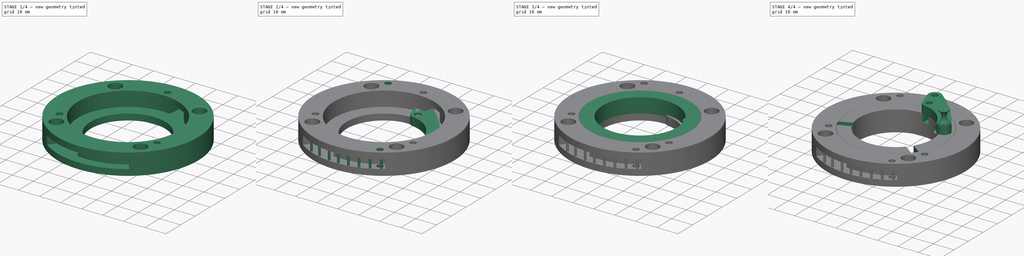
[diagram: build sequence overview — one tinted view per stage of 4, left to right]
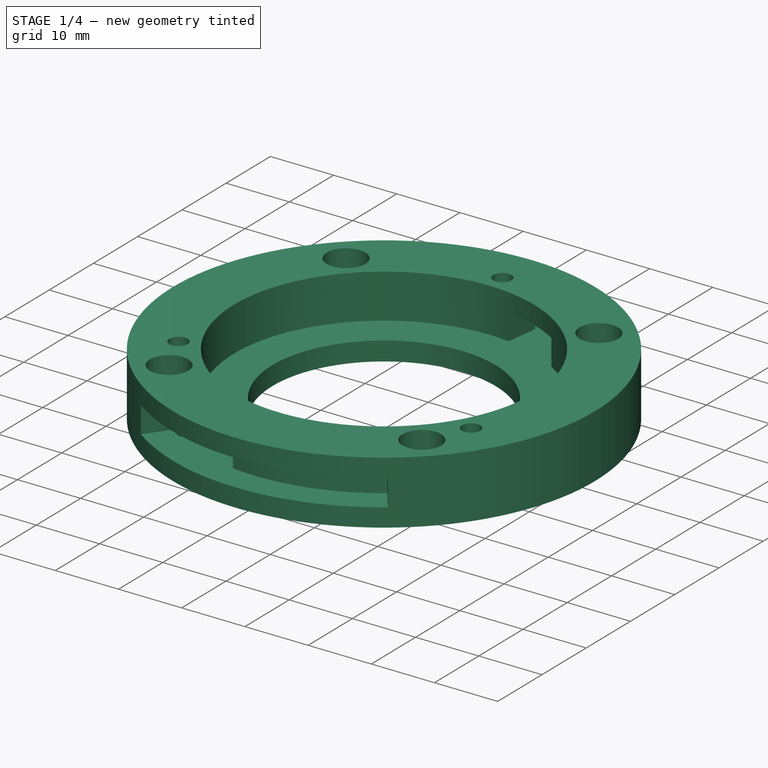
[diagram: stage 1 of 4 — iso view after this stage's code; geometry added in this stage tinted green]
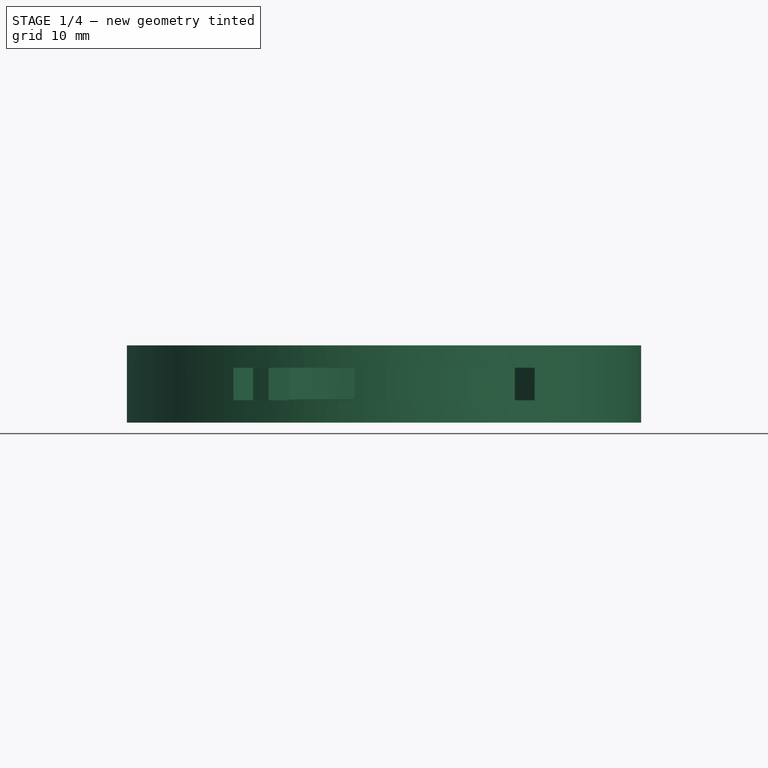
[diagram: stage 1 of 4 — front view after this stage's code; geometry added in this stage tinted green]
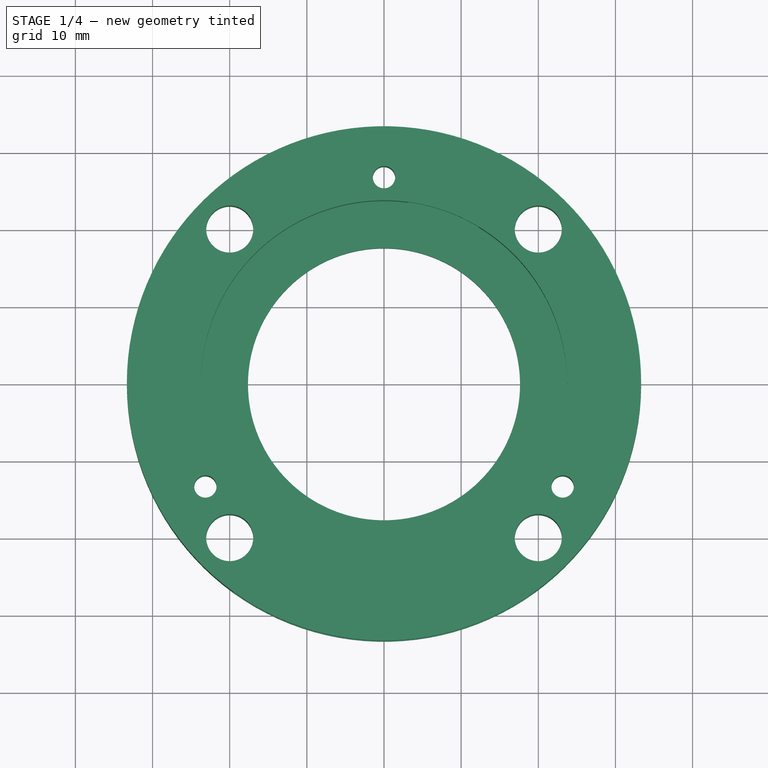
[diagram: stage 1 of 4 — top view after this stage's code; geometry added in this stage tinted green]
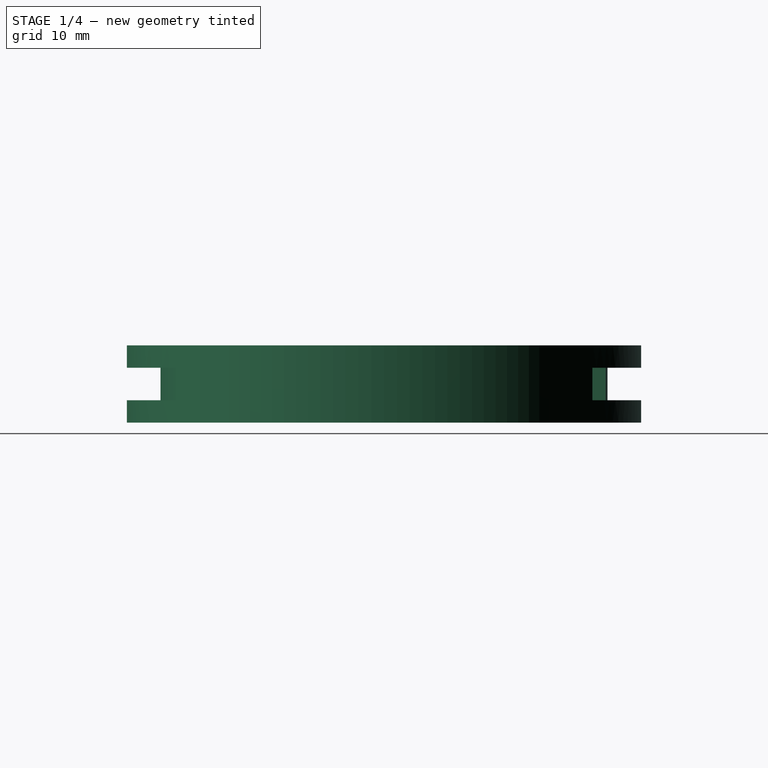
[diagram: stage 1 of 4 — right view after this stage's code; geometry added in this stage tinted green]
FCSTD DOCUMENT  (FreeCAD 0.20R29410 (Git))
Label: CCLensMount
License: All rights reserved
LicenseURL: http://en.wikipedia.org/wiki/All_rights_reserved
objects: Sketcher::SketchObject×13, PartDesign::Pocket×6, Part::Part2DObjectPython×5, PartDesign::Plane×5, PartDesign::Body×5, PartDesign::Pad×3, PartDesign::Revolution×2, PartDesign::FeatureBase×2, Spreadsheet::Sheet×1, Image::ImagePlane×1, PartDesign::SubtractiveTorus×1
note: 54 computed .brp shape members not serialized (recipe doc carries the construction recipe); baked Part::Feature solids carry a one-line shape summary decoded from their .brp

FEATURE [Part::Part2DObjectPython] Clone2D001  label="MechanismGeomSketch (2D)"  # Draft 2D object (typed FeaturePython)
  Fuse = false
  Objects = -> [Sketch]
  Scale = (1,1,1)
FEATURE [Part::Part2DObjectPython] Clone2D002  label="CoreDimensionsSketch (2D)"  # Draft 2D object (typed FeaturePython)
  Fuse = false
  Objects = -> [Sketch002]
  Scale = (1,1,1)
FEATURE [Sketcher::SketchObject] Sketch003
  ExternalGeometry = -> [Clone2D002]
  FullyConstrained = true
  MapMode = 5
  Placement = pos=(0,0,0) rot=(1,0,0;1.5708rad)
  Support = -> [XZ_Plane001]
  sketch-geometry (6):
    g0: LineSegment StartX=-33.3343 StartY=0 StartZ=0 EndX=-33.3343 EndY=10 EndZ=0
    g1: LineSegment StartX=-33.3343 StartY=10 StartZ=0 EndX=-23.7343 EndY=10 EndZ=0
    g2: LineSegment StartX=-23.7343 StartY=10 StartZ=0 EndX=-23.7343 EndY=3 EndZ=0
    g3: LineSegment StartX=-23.7343 StartY=3 StartZ=0 EndX=-17.6343 EndY=3 EndZ=0
    g4: LineSegment StartX=-17.6343 StartY=3 StartZ=0 EndX=-17.6343 EndY=0 EndZ=0
    g5: LineSegment StartX=-33.3343 StartY=0 StartZ=0 EndX=-17.6343 EndY=0 EndZ=0
  constraints (16):
    c: Coincident(g-3,g0)
    c: Vertical(g0)
    c: Coincident(g0,g1)
    c: Horizontal(g1)
    c: Coincident(g1,g2)
    c: Vertical(g2)
    c: Coincident(g2,g3)
    c: Horizontal(g3)
    c: Coincident(g3,g4)
    c: Coincident(g4,g-5)
    c: Vertical(g4)
    c: Coincident(g5,g0)
    c: Coincident(g5,g4)
    c: DistanceY(g0,g0) = 10
    c: Vertical(g2,g-4)
    c: DistanceY(g4,g4) = 3
FEATURE [PartDesign::Revolution] Revolution
  Angle = 360
  Axis = (0,-2e-16,1)
  Base = (0,0,0)
  Placement = pos=(0,0,0) rot=(1,0,0;1.5708rad)
  Profile = -> Sketch003
  ReferenceAxis = -> Sketch003 [V_Axis]
  Refine = true
FEATURE [Part::Part2DObjectPython] Clone2D004  label="MechanismGeomSketch (2D)001"  # Draft 2D object (typed FeaturePython)
  Fuse = false
  Objects = -> [Sketch]
  Scale = (1,1,1)
FEATURE [PartDesign::Plane] DatumPlane
  AttachmentOffset = pos=(0,0,10) rot=(0,0,1;0rad)
  Length = 60
  MapMode = 5
  Placement = pos=(0,0,10) rot=(0,0,1;0rad)
  ResizeMode = 0
  Support = -> [XY_Plane001]
  Width = 60
  expr: .AttachmentOffset.Base.z = Spreadsheet.ringheight
FEATURE [Sketcher::SketchObject] Sketch005
  ExternalGeometry = -> [Clone2D001,Clone2D002]
  FullyConstrained = true
  MapMode = 5
  Placement = pos=(0,0,10) rot=(0,0,1;0rad)
  Support = -> [DatumPlane]
  expr: Constraints[13] = Spreadsheet.roddiameter + Spreadsheet.rodclearance
  expr: Constraints[5] = Spreadsheet.m3tightholediameter
  sketch-geometry (9):
    g0: Circle CenterX=0 CenterY=0 CenterZ=0 NormalX=0 NormalY=0 NormalZ=1 AngleXU=0 Radius=1.45
    g1: Circle CenterX=0 CenterY=26.7343 CenterZ=0 NormalX=0 NormalY=0 NormalZ=1 AngleXU=0 Radius=1.45
    g2: Circle CenterX=0 CenterY=-1.8e-15 CenterZ=0 NormalX=0 NormalY=0 NormalZ=1 AngleXU=0 Radius=1.45
    g3: Circle CenterX=-20 CenterY=20 CenterZ=0 NormalX=0 NormalY=0 NormalZ=1 AngleXU=0 Radius=3.05
    g4: Circle CenterX=20 CenterY=20 CenterZ=0 NormalX=0 NormalY=0 NormalZ=1 AngleXU=0 Radius=3.05
    g5: Circle CenterX=-20 CenterY=-20 CenterZ=0 NormalX=0 NormalY=0 NormalZ=1 AngleXU=0 Radius=3.05
    g6: Circle CenterX=20 CenterY=-20 CenterZ=0 NormalX=0 NormalY=0 NormalZ=1 AngleXU=0 Radius=3.05
    g7: Circle CenterX=-23.1526 CenterY=-13.3671 CenterZ=0 NormalX=0 NormalY=0 NormalZ=1 AngleXU=0 Radius=1.45
    g8: Circle CenterX=23.1526 CenterY=-13.3671 CenterZ=0 NormalX=0 NormalY=0 NormalZ=1 AngleXU=0 Radius=1.45
  constraints (18):
    c: Coincident(g0,g-3)
    c: Coincident(g1,g-4)
    c: Coincident(g2,g-5)
    c: Equal(g0,g2)
    c: Equal(g2,g1)
    c: Diameter(g0) = 2.9
    c: Coincident(g3,g-6)
    c: Coincident(g4,g-7)
    c: Coincident(g5,g-8)
    c: Coincident(g6,g-9)
    c: Equal(g3,g4)
    c: Equal(g4,g5)
    c: Equal(g5,g6)
    c: Diameter(g3) = 6.1
    c: Coincident(g7,g-11)
    c: Coincident(g8,g-10)
    c: Equal(g7,g8)
    c: Equal(g8,g1)
FEATURE [PartDesign::Pocket] Pocket
  BaseFeature = -> Revolution
  Direction = (0,0,-1)
  Length = 12
  Length2 = 5
  Placement = pos=(0,0,0) rot=(1,0,0;1.5708rad)
  Profile = -> Sketch005
  ReferenceAxis = -> Sketch005 [N_Axis]
  Refine = true
  Type = 0
FEATURE [PartDesign::Plane] DatumPlane003
  AttachmentOffset = pos=(0,0,5) rot=(0,0,1;0rad)
  Length = 60
  MapMode = 5
  Placement = pos=(0,0,5) rot=(0,0,1;0rad)
  ResizeMode = 0
  Support = -> [XY_Plane001]
  Width = 60
  expr: .AttachmentOffset.Base.z = Spreadsheet.ringheight / 2
FEATURE [Sketcher::SketchObject] Sketch008
  ExternalGeometry = -> [Clone2D001,Clone2D002]
  FullyConstrained = false
  MapMode = 5
  Placement = pos=(0,0,5) rot=(0,0,1;0rad)
  Support = -> [DatumPlane003]
  sketch-geometry (10):
    g0: LineSegment StartX=4.85086 StartY=36.5697 StartZ=0 EndX=3.12094 EndY=23.5282 EndZ=0
    g1: LineSegment StartX=3.12094 StartY=23.5282 StartZ=0 EndX=12.2695 EndY=20.3169 EndZ=0
    g2: LineSegment StartX=12.2695 StartY=20.3169 StartZ=0 EndX=18.54 EndY=30.7003 EndZ=0
    g3: LineSegment StartX=18.54 StartY=30.7003 StartZ=0 EndX=4.85086 EndY=36.5697 EndZ=0
    g4: LineSegment StartX=-5.73963 StartY=-43.2699 StartZ=0 EndX=5.98973 EndY=45.1554 EndZ=0
    g5: LineSegment StartX=-23.129 StartY=-38.2991 StartZ=0 EndX=20.139 EndY=33.3479 EndZ=0
    g6: LineSegment StartX=-12.2695 StartY=-20.3169 StartZ=0 EndX=-3.12094 EndY=-23.5282 EndZ=0
    g7: LineSegment StartX=-3.12094 StartY=-23.5282 StartZ=0 EndX=-4.67523 EndY=-35.2456 EndZ=0
    g8: LineSegment StartX=-4.67523 StartY=-35.2456 StartZ=0 EndX=-18.2755 EndY=-30.2621 EndZ=0
    g9: LineSegment StartX=-18.2755 StartY=-30.2621 StartZ=0 EndX=-12.2695 EndY=-20.3169 EndZ=0
  constraints (24):
    c: Coincident(g0,g1)
    c: Coincident(g1,g2)
    c: Coincident(g2,g3)
    c: Coincident(g3,g0)
    c: PointOnObject(g0,g4)
    c: PointOnObject(g0,g4)
    c: PointOnObject(g1,g5)
    c: PointOnObject(g2,g5)
    c: Angle(g-1,g5) = 1.02751
    c: Angle(g5,g4) = 0.411409
    c: PointOnObject(g-3,g5)
    c: PointOnObject(g-3,g4)
    c: PointOnObject(g6,g5)
    c: PointOnObject(g6,g4)
    c: Coincident(g6,g7)
    c: PointOnObject(g7,g4)
    c: Coincident(g7,g8)
    c: PointOnObject(g8,g5)
    c: Coincident(g8,g9)
    c: Coincident(g9,g6)
    c: PointOnObject(g0,g-4)
    c: PointOnObject(g1,g-4)
    c: PointOnObject(g6,g-4)
    c: PointOnObject(g6,g-4)
FEATURE [PartDesign::Pocket] Pocket002  label="LeverPocket"
  BaseFeature = -> Pocket
  Direction = (0,0,-1)
  Length = 4.2
  Length2 = 5
  Midplane = true
  Placement = pos=(0,0,0) rot=(1,0,0;1.5708rad)
  Profile = -> Sketch008
  ReferenceAxis = -> Sketch008 [N_Axis]
  Refine = true
  Type = 0
FEATURE [PartDesign::Body] Body002  label="InnerRingBody"
  Group = -> [Sketch004,Clone2D003,Revolution001,DatumPlane002,Clone2D004,Sketch007,Pocket001,DatumPlane004,Sketch009,Pocket003]
  Origin = -> Origin002
  Tip = -> Pocket003
FEATURE [Sketcher::SketchObject] Sketch010
  FullyConstrained = false
  MapMode = 5
  Placement = pos=(0,0,5) rot=(0,0,1;0rad)
  Support = -> [DatumPlane003]
  sketch-geometry (11):
    g0: ArcOfCircle CenterX=0 CenterY=0 CenterZ=0 NormalX=0 NormalY=0 NormalZ=1 AngleXU=0 Radius=33.965 StartAngle=0.944875 EndAngle=2.19672
    g1: ArcOfCircle CenterX=0 CenterY=0 CenterZ=0 NormalX=0 NormalY=0 NormalZ=1 AngleXU=0 Radius=28.965 StartAngle=0.944875 EndAngle=2.19672
    g2: LineSegment StartX=0 StartY=0 StartZ=0 EndX=-20.0857 EndY=27.7855 EndZ=0
    g3: LineSegment StartX=0 StartY=0 StartZ=0 EndX=24.3287 EndY=33.655 EndZ=0
    g4: LineSegment StartX=-19.8982 StartY=27.526 StartZ=0 EndX=-16.969 EndY=23.4739 EndZ=0
    g5: LineSegment StartX=19.8982 StartY=27.526 StartZ=0 EndX=16.969 EndY=23.4739 EndZ=0
    g6: LineSegment StartX=4.35426 StartY=36.7028 StartZ=0 EndX=-19.6019 EndY=31.7566 EndZ=0
    g7: ArcOfCircle CenterX=0 CenterY=0 CenterZ=0 NormalX=0 NormalY=0 NormalZ=1 AngleXU=0 Radius=28.965 StartAngle=4.08647 EndAngle=5.33831
    g8: ArcOfCircle CenterX=0 CenterY=0 CenterZ=0 NormalX=0 NormalY=0 NormalZ=1 AngleXU=0 Radius=33.965 StartAngle=4.08647 EndAngle=5.33831
    g9: LineSegment StartX=-16.969 StartY=-23.4739 StartZ=0 EndX=-19.8982 EndY=-27.526 EndZ=0
    g10: LineSegment StartX=16.969 StartY=-23.4739 StartZ=0 EndX=19.8982 EndY=-27.526 EndZ=0
  constraints (28):
    c: Coincident(g-1,g0)
    c: Coincident(g1,g0)
    c: Coincident(g2,g0)
    c: PointOnObject(g0,g2)
    c: PointOnObject(g1,g2)
    c: Coincident(g3,g0)
    c: PointOnObject(g0,g3)
    c: PointOnObject(g1,g3)
    c: Distance(g0,g1) = 5
    c: Coincident(g4,g0)
    c: Coincident(g4,g1)
    c: Coincident(g5,g0)
    c: Coincident(g5,g1)
    c: Coincident(g7,g0)
    c: Coincident(g8,g0)
    c: Coincident(g9,g7)
    c: Coincident(g9,g8)
    c: Coincident(g10,g7)
    c: Coincident(g10,g8)
    c: Block(g2)
    c: Distance(g1,g0) = 28.965
    c: Parallel(g4,g10)
    c: Block(g3)
    c: PointOnObject(g7,g3)
    c: PointOnObject(g8,g3)
    c: PointOnObject(g7,g2)
    c: Equal(g4,g9)
    c: Symmetric(g1,g7,g-1)
FEATURE [PartDesign::Pocket] Pocket004  label="SpringPocket"
  BaseFeature = -> Pocket002
  Direction = (0,0,-1)
  Length = 4.2
  Length2 = 5
  Midplane = true
  Placement = pos=(0,0,0) rot=(1,0,0;1.5708rad)
  Profile = -> Sketch010
  ReferenceAxis = -> Sketch010 [N_Axis]
  Refine = true
  Type = 0
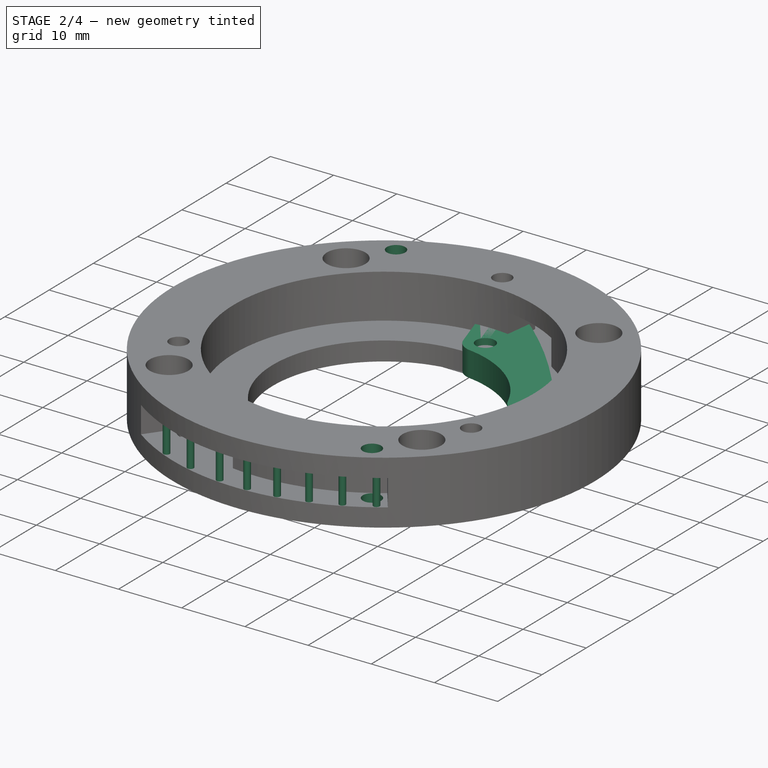
[diagram: stage 2 of 4 — iso view after this stage's code; geometry added in this stage tinted green]
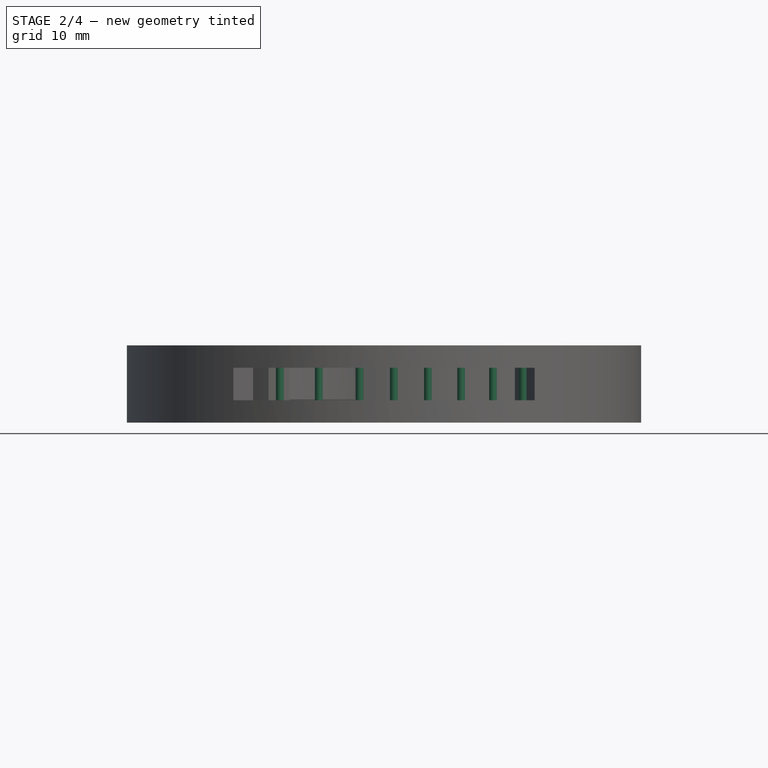
[diagram: stage 2 of 4 — front view after this stage's code; geometry added in this stage tinted green]
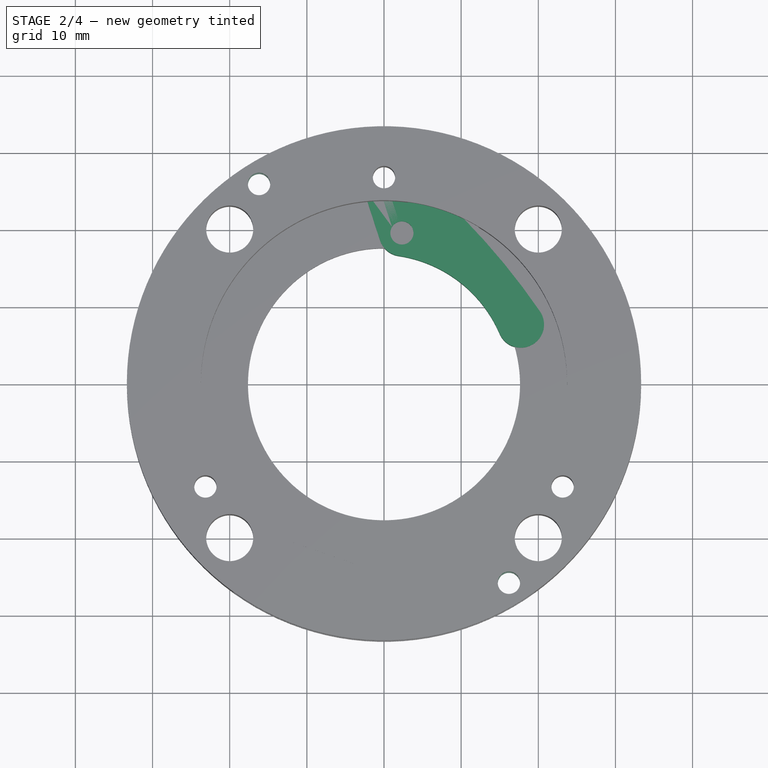
[diagram: stage 2 of 4 — top view after this stage's code; geometry added in this stage tinted green]
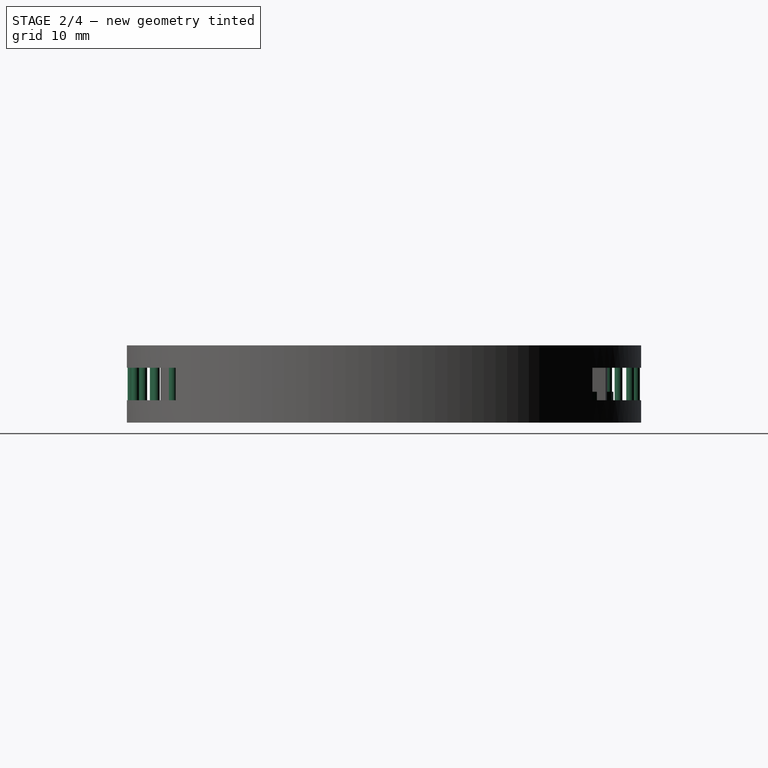
[diagram: stage 2 of 4 — right view after this stage's code; geometry added in this stage tinted green]
FEATURE [Spreadsheet::Sheet] Spreadsheet
  cells = A2=outerdiameter; B2(outerdiameter)==62mm; A3=innerringwidth; B3(innerringwidth)==6mm; A4=innerdiameter; B4(innerdiameter)==34mm; A5=ringclearance; B5(ringclearance)==0.1mm; A6=outerringwidth; B6(outerringwidth)==4mm; A7=outerrignlipheight; B7(outerrignlipheight)==3mm; A8=ringheight; B8(ringheight)==10mm; A9=m3tightholediameter; B9(m3tightholediameter)==2.9mm; A10=rodclearance; B10(rodclearance)==0.1mm; A11=cagedim; B11(cagedim)==40mm; A12=roddiameter; B12(roddiameter)==6mm; A13=armheight; B13(armheight)==4mm
FEATURE [Image::ImagePlane] ImagePlane
  Placement = pos=(-32.4,-5.4,0) rot=(0,0,1;0rad)
  XSize = 142.86
  YSize = 142.86
FEATURE [Sketcher::SketchObject] Sketch002  label="CoreDimensionsSketch"
  FullyConstrained = false
  expr: Constraints[11] = Spreadsheet.cagedim
  expr: Constraints[19] = Spreadsheet.roddiameter + Spreadsheet.rodclearance
  expr: Constraints[56] = Spreadsheet.ringclearance
  expr: Constraints[61] = Spreadsheet.innerringwidth
  sketch-geometry (29):
    g0: LineSegment StartX=-20 StartY=20 StartZ=0 EndX=-20 EndY=-20 EndZ=0
    g1: LineSegment StartX=-20 StartY=-20 StartZ=0 EndX=20 EndY=-20 EndZ=0
    g2: LineSegment StartX=20 StartY=-20 StartZ=0 EndX=20 EndY=20 EndZ=0
    g3: LineSegment StartX=20 StartY=20 StartZ=0 EndX=-20 EndY=20 EndZ=0
    g4: GeomPoint X=0 Y=0 Z=0
    g5: Circle CenterX=-20 CenterY=20 CenterZ=0 NormalX=0 NormalY=0 NormalZ=1 AngleXU=0 Radius=3.05
    g6: Circle CenterX=20 CenterY=20 CenterZ=0 NormalX=0 NormalY=0 NormalZ=1 AngleXU=0 Radius=3.05
    g7: Circle CenterX=-20 CenterY=-20 CenterZ=0 NormalX=0 NormalY=0 NormalZ=1 AngleXU=0 Radius=3.05
    g8: Circle CenterX=20 CenterY=-20 CenterZ=0 NormalX=0 NormalY=0 NormalZ=1 AngleXU=0 Radius=3.05
    g9: Circle CenterX=0 CenterY=0 CenterZ=0 NormalX=0 NormalY=0 NormalZ=1 AngleXU=0 Radius=33.3343
    g10: Circle CenterX=0 CenterY=0 CenterZ=0 NormalX=0 NormalY=0 NormalZ=1 AngleXU=0 Radius=23.7343
    g11: LineSegment StartX=0 StartY=0 StartZ=0 EndX=44.4316 EndY=44.4316 EndZ=0
    g12: GeomPoint X=17.8433 Y=17.8433 Z=0
    g13: GeomPoint X=16.7827 Y=16.7827 Z=0
    g14: LineSegment StartX=17.8433 StartY=17.8433 StartZ=0 EndX=16.7827 EndY=16.7827 EndZ=0
    g15: GeomPoint X=22.1567 Y=22.1567 Z=0
    g16: GeomPoint X=23.5709 Y=23.5709 Z=0
    g17: LineSegment StartX=23.5709 StartY=23.5709 StartZ=0 EndX=22.1567 EndY=22.1567 EndZ=0
    g18: GeomPoint X=0 Y=23.7343 Z=0
    g19: Circle CenterX=0 CenterY=26.7343 CenterZ=0 NormalX=0 NormalY=0 NormalZ=1 AngleXU=0 Radius=1.5
    g20: GeomPoint X=0 Y=25.2343 Z=0
    g21: LineSegment StartX=0 StartY=25.2343 StartZ=0 EndX=0 EndY=23.7343 EndZ=0
    g22: LineSegment StartX=0 StartY=0 StartZ=0 EndX=0 EndY=-45 EndZ=0
    g23: Circle CenterX=0 CenterY=0 CenterZ=0 NormalX=0 NormalY=0 NormalZ=1 AngleXU=0 Radius=23.6343
    g24: Circle CenterX=0 CenterY=0 CenterZ=0 NormalX=0 NormalY=0 NormalZ=1 AngleXU=0 Radius=17.6343
    g25: GeomPoint X=0 Y=23.6343 Z=0
    g26: LineSegment StartX=0 StartY=23.7343 StartZ=0 EndX=0 EndY=23.6343 EndZ=0
    g27: GeomPoint X=0 Y=17.6343 Z=0
    g28: LineSegment StartX=0 StartY=23.6343 StartZ=0 EndX=0 EndY=17.6343 EndZ=0
  constraints (62):
    c: Coincident(g0,g1)
    c: Coincident(g1,g2)
    c: Coincident(g2,g3)
    c: Coincident(g3,g0)
    c: Horizontal(g1)
    c: Horizontal(g3)
    c: Vertical(g0)
    c: Vertical(g2)
    c: Symmetric(g1,g0,g4)
    c: Coincident(g4,g-1)
    c: Equal(g2,g1)
    c: DistanceX(g1,g1) = 40
    c: Coincident(g5,g0)
    c: Coincident(g6,g2)
    c: Coincident(g7,g0)
    c: Coincident(g8,g1)
    c: Equal(g5,g6)
    c: Equal(g6,g7)
    c: Equal(g7,g8)
    c: Diameter(g6) = 6.1
    c: Coincident(g9,g4)
    c: Coincident(g10,g9)
    c: Coincident(g11,g9)
    c: PointOnObject(g2,g11)
    c: PointOnObject(g12,g6)
    c: PointOnObject(g13,g10)
    c: PointOnObject(g12,g11)
    c: PointOnObject(g13,g11)
    c: Coincident(g14,g12)
    c: Coincident(g14,g13)
    c: Distance(g14) = 1.5
    c: PointOnObject(g15,g6)
    c: PointOnObject(g16,g9)
    c: PointOnObject(g15,g11)
    c: PointOnObject(g16,g11)
    c: Coincident(g17,g16)
    c: Coincident(g17,g15)
    c: Distance(g17) = 2
    c: PointOnObject(g18,g10)
    c: PointOnObject(g18,g-2)
    c: PointOnObject(g19,g-2)
    c: PointOnObject(g20,g19)
    c: PointOnObject(g20,g-2)
    c: Coincident(g21,g20)
    c: Coincident(g21,g18)
    c: DistanceY(g21,g21) = 1.5
    c: Diameter(g19) = 3
    c: Coincident(g22,g9)
    c: PointOnObject(g22,g-2)
    c: DistanceY(g22,g22) = 45
    c: Coincident(g23,g9)
    c: Coincident(g24,g9)
    c: PointOnObject(g25,g23)
    c: PointOnObject(g25,g-2)
    c: Coincident(g26,g21)
    c: Coincident(g26,g25)
    c: DistanceY(g26,g26) = 0.1
    c: PointOnObject(g27,g24)
    c: PointOnObject(g27,g-2)
    c: Coincident(g28,g26)
    c: Coincident(g28,g27)
    c: DistanceY(g28,g28) = 6
FEATURE [Sketcher::SketchObject] Sketch  label="MechanismGeomSketch"
  ExternalGeometry = -> [Sketch002]
  FullyConstrained = false
  expr: Constraints[24] = Spreadsheet.innerdiameter / 2
  sketch-geometry (58):
    g0: Circle CenterX=0 CenterY=0 CenterZ=0 NormalX=0 NormalY=0 NormalZ=1 AngleXU=0 Radius=17
    g1: Circle CenterX=0 CenterY=0 CenterZ=0 NormalX=0 NormalY=0 NormalZ=1 AngleXU=0 Radius=23.6343
    g2: LineSegment StartX=0 StartY=26.7343 StartZ=0 EndX=0 EndY=0 EndZ=0
    g3: LineSegment StartX=-23.1526 StartY=-13.3671 StartZ=0 EndX=0 EndY=0 EndZ=0
    g4: LineSegment StartX=23.1526 StartY=-13.3671 StartZ=0 EndX=0 EndY=0 EndZ=0
    g5: Circle CenterX=0 CenterY=0 CenterZ=0 NormalX=0 NormalY=0 NormalZ=1 AngleXU=0 Radius=33.3343
    g6: Circle CenterX=0 CenterY=0 CenterZ=0 NormalX=0 NormalY=0 NormalZ=1 AngleXU=0 Radius=23.7343
    g7: GeomPoint X=0 Y=23.7343 Z=0
    g8: GeomPoint X=0 Y=33.3343 Z=0
    g9: LineSegment StartX=0 StartY=23.7343 StartZ=0 EndX=0 EndY=26.7343 EndZ=0
    g10: LineSegment StartX=0 StartY=26.7343 StartZ=0 EndX=0 EndY=33.3343 EndZ=0
    g11: Circle CenterX=0 CenterY=26.7343 CenterZ=0 NormalX=0 NormalY=0 NormalZ=1 AngleXU=0 Radius=1.5
    g12: Circle CenterX=-23.1526 CenterY=-13.3671 CenterZ=0 NormalX=0 NormalY=0 NormalZ=1 AngleXU=0 Radius=1.5
    g13: Circle CenterX=23.1526 CenterY=-13.3671 CenterZ=0 NormalX=0 NormalY=0 NormalZ=1 AngleXU=0 Radius=1.5
    g14: LineSegment StartX=0 StartY=0 StartZ=0 EndX=17.7448 EndY=7.73105 EndZ=0
    g15: LineSegment StartX=0 StartY=0 StartZ=0 EndX=-2.17711 EndY=-19.233 EndZ=0
    g16: LineSegment StartX=0 StartY=0 StartZ=0 EndX=-15.5677 EndY=11.5019 EndZ=0
    g17: LineSegment StartX=0 StartY=26.7343 StartZ=0 EndX=17.7448 EndY=7.73105 EndZ=0
    g18: LineSegment StartX=23.1526 StartY=-13.3671 StartZ=0 EndX=-2.17711 EndY=-19.233 EndZ=0
    g19: LineSegment StartX=-23.1526 StartY=-13.3671 StartZ=0 EndX=-15.5677 EndY=11.5019 EndZ=0
    g20: Circle CenterX=0 CenterY=0 CenterZ=0 NormalX=0 NormalY=0 NormalZ=1 AngleXU=0 Radius=19.3558
    g21: LineSegment StartX=0 StartY=26.7343 StartZ=0 EndX=2.32244 EndY=19.6029 EndZ=0
    g22: Circle CenterX=2.32244 CenterY=19.6029 CenterZ=0 NormalX=0 NormalY=0 NormalZ=1 AngleXU=0 Radius=1.5
    g23: LineSegment StartX=23.1526 StartY=-13.3671 StartZ=0 EndX=16.1968 EndY=-10.5623 EndZ=0
    g24: LineSegment StartX=-23.1526 StartY=-13.3671 StartZ=0 EndX=-17.2456 EndY=-8.74569 EndZ=0
    g25: LineSegment StartX=0 StartY=0 StartZ=0 EndX=7.93886 EndY=67.0091 EndZ=0
    g26: GeomPoint X=2.78061 Y=23.4701 Z=0
    g27: GeomPoint X=2.00008 Y=16.8819 Z=0
    g28: LineSegment StartX=1.28542 StartY=23.5993 StartZ=0 EndX=4.26458 EndY=23.2463 EndZ=0
    g29: LineSegment StartX=4.26458 StartY=23.2463 StartZ=0 EndX=3.48186 EndY=16.6396 EndZ=0
    g30: LineSegment StartX=3.48186 StartY=16.6396 StartZ=0 EndX=0.502692 EndY=16.9926 EndZ=0
    g31: LineSegment StartX=0.502692 StartY=16.9926 StartZ=0 EndX=1.28542 EndY=23.5993 EndZ=0
    g32: Circle CenterX=16.1968 CenterY=-10.5623 CenterZ=0 NormalX=0 NormalY=0 NormalZ=1 AngleXU=0 Radius=1.5
    g33: Circle CenterX=-17.2456 CenterY=-8.74569 CenterZ=0 NormalX=0 NormalY=0 NormalZ=1 AngleXU=0 Radius=1.5
    g34: LineSegment StartX=0 StartY=0 StartZ=0 EndX=-60.1814 EndY=-30.5195 EndZ=0
    g35: LineSegment StartX=0 StartY=0 StartZ=0 EndX=56.5214 EndY=-36.8589 EndZ=0
    g36: LineSegment StartX=-15.7811 StartY=-6.32114 StartZ=0 EndX=-14.4242 EndY=-8.99676 EndZ=0
    g37: LineSegment StartX=-14.4242 StartY=-8.99676 StartZ=0 EndX=-20.3578 EndY=-12.0058 EndZ=0
    g38: LineSegment StartX=-20.3578 StartY=-12.0058 StartZ=0 EndX=-21.7147 EndY=-9.3302 EndZ=0
    g39: LineSegment StartX=-21.7147 StartY=-9.3302 StartZ=0 EndX=-15.7811 EndY=-6.32114 EndZ=0
    g40: LineSegment StartX=13.3648 StartY=-10.5063 StartZ=0 EndX=15.0035 EndY=-7.99337 EndZ=0
    g41: LineSegment StartX=15.0035 StartY=-7.99337 StartZ=0 EndX=20.5762 EndY=-11.6274 EndZ=0
    g42: LineSegment StartX=20.5762 StartY=-11.6274 StartZ=0 EndX=18.9375 EndY=-14.1403 EndZ=0
    g43: LineSegment StartX=18.9375 StartY=-14.1403 StartZ=0 EndX=13.3648 EndY=-10.5063 EndZ=0
    g44: LineSegment StartX=0 StartY=0 StartZ=0 EndX=-2.05986 EndY=23.5443 EndZ=0
    g45: LineSegment StartX=20.7331 StartY=41.1219 StartZ=0 EndX=0 EndY=0 EndZ=0
    g46: LineSegment StartX=19.1147 StartY=41.9379 StartZ=0 EndX=22.3515 EndY=40.306 EndZ=0
    g47: LineSegment StartX=22.3515 StartY=40.306 StartZ=0 EndX=16.6034 EndY=28.9051 EndZ=0
    g48: LineSegment StartX=16.6034 StartY=28.9051 StartZ=0 EndX=13.3665 EndY=30.537 EndZ=0
    g49: LineSegment StartX=13.3665 StartY=30.537 StartZ=0 EndX=19.1147 EndY=41.9379 EndZ=0
    g50: Circle CenterX=17.7448 CenterY=7.73105 CenterZ=0 NormalX=0 NormalY=0 NormalZ=1 AngleXU=0 Radius=1.82211
    g51: Circle CenterX=-15.5677 CenterY=11.5019 CenterZ=0 NormalX=0 NormalY=0 NormalZ=1 AngleXU=0 Radius=1.82211
    g52: Circle CenterX=-2.17711 CenterY=-19.233 CenterZ=0 NormalX=0 NormalY=0 NormalZ=1 AngleXU=0 Radius=1.82211
    g53: GeomPoint X=0 Y=0 Z=0
    g54: LineSegment StartX=16.9871 StartY=29.1138 StartZ=0 EndX=7.69788 EndY=32.8164 EndZ=0
    g55: LineSegment StartX=0 StartY=0 StartZ=0 EndX=12.9298 EndY=32.4385 EndZ=0
    g56: LineSegment StartX=2.78061 StartY=23.4701 StartZ=0 EndX=2.00008 EndY=16.8819 EndZ=0
    g57: LineSegment StartX=19.1433 StartY=37.9687 StartZ=0 EndX=17.5737 EndY=34.8556 EndZ=0
  constraints (136):
    c: Coincident(g0,g-1)
    c: Coincident(g1,g0)
    c: Coincident(g2,g0)
    c: Coincident(g3,g0)
    c: Coincident(g4,g0)
    c: Angle(g4,g2) = 2.0944
    c: Angle(g3,g4) = 2.0944
    c: Equal(g3,g2)
    c: Equal(g2,g4)
    c: Coincident(g5,g0)
    c: Coincident(g6,g0)
    c: PointOnObject(g7,g-2)
    c: PointOnObject(g8,g-2)
    c: PointOnObject(g7,g6)
    c: PointOnObject(g8,g5)
    c: Coincident(g9,g7)
    c: Coincident(g9,g10)
    c: Coincident(g10,g8)
    c: Coincident(g11,g2)
    c: Coincident(g12,g3)
    c: Coincident(g13,g4)
    c: Diameter(g12) = 3
    c: Equal(g12,g11)
    c: Equal(g11,g13)
    c: Radius(g0) = 17
    c: Coincident(g2,g9)
    c: Coincident(g14,g0)
    c: Coincident(g15,g0)
    c: Coincident(g16,g0)
    c: Angle(g15,g14) = 2.0944
    c: Angle(g16,g15) = 2.0944
    c: Coincident(g17,g2)
    c: Coincident(g18,g4)
    c: Coincident(g19,g3)
    c: PointOnObject(g16,g19)
    c: PointOnObject(g15,g18)
    c: Equal(g17,g18)
    c: Equal(g18,g19)
    c: Coincident(g20,g0)
    c: PointOnObject(g17,g20)
    c: PointOnObject(g18,g20)
    c: PointOnObject(g19,g20)
    c: Coincident(g21,g2)
    c: Coincident(g22,g21)
    c: Coincident(g23,g4)
    c: Coincident(g24,g3)
    c: Angle(g23,g18) = 0.610865
    c: Angle(g24,g19) = 0.610865
    c: Equal(g23,g21)
    c: Equal(g21,g24)
    c: Coincident(g14,g17)
    c: Coincident(g0,g25)
    c: PointOnObject(g21,g25)
    c: PointOnObject(g26,g1)
    c: PointOnObject(g26,g25)
    c: PointOnObject(g27,g0)
    c: PointOnObject(g27,g25)
    c: PointOnObject(g28,g1)
    c: Coincident(g28,g29)
    c: PointOnObject(g29,g0)
    c: Coincident(g29,g30)
    c: PointOnObject(g30,g0)
    c: Coincident(g30,g31)
    c: Coincident(g31,g28)
    c: Symmetric(g28,g28,g25)
    c: Equal(g30,g28)
    c: Equal(g31,g29)
    c: Distance(g30) = 3
    c: Diameter(g22) = 3
    c: Coincident(g32,g23)
    c: Coincident(g33,g24)
    c: Equal(g22,g33)
    c: Equal(g33,g32)
    c: Coincident(g34,g0)
    c: Coincident(g35,g0)
    c: PointOnObject(g24,g34)
    c: PointOnObject(g23,g35)
    c: Equal(g25,g34)
    c: Equal(g34,g35)
    c: PointOnObject(g36,g0)
    c: Coincident(g36,g37)
    c: PointOnObject(g37,g1)
    c: Coincident(g37,g38)
    c: Coincident(g38,g39)
    c: Coincident(g39,g36)
    c: Symmetric(g36,g36,g34)
    c: Symmetric(g38,g37,g34)
    c: Equal(g36,g38)
    c: Equal(g30,g36)
    c: PointOnObject(g40,g0)
    c: Coincident(g40,g41)
    c: PointOnObject(g41,g1)
    c: Coincident(g41,g42)
    c: Coincident(g42,g43)
    c: Coincident(g43,g40)
    c: Symmetric(g40,g40,g35)
    c: Symmetric(g41,g42,g35)
    c: Equal(g30,g40)
    c: Equal(g42,g40)
    c: Coincident(g44,g0)
    c: Angle(g-2,g44) = 0.0872665
    c: Angle(g21,g17) = 0.436332
    c: Coincident(g45,g0)
    c: Coincident(g46,g47)
    c: PointOnObject(g47,g5)
    c: Coincident(g47,g48)
    c: Coincident(g48,g49)
    c: Coincident(g49,g46)
    c: PointOnObject(g45,g46)
    c: Symmetric(g46,g46,g45)
    c: Symmetric(g48,g47,g45)
    c: Equal(g46,g48)
    c: Distance(g46) = 3.625
    c: Distance(g47) = 12.768
    c: Coincident(g50,g14)
    c: Coincident(g51,g16)
    c: Coincident(g52,g15)
    c: Equal(g51,g50)
    c: Equal(g50,g52)
    c: PointOnObject(g44,g1)
    c: Coincident(g53,g0)
    c: Coincident(g2,g-4)
    c: Equal(g-3,g5)
    c: Equal(g6,g-5)
    c: Equal(g-6,g1)
    c: Distance(g21) = 7.5
    c: Distance(g17) = 26
    c: Distance(g54) = 10
    c: Coincident(g55,g0)
    c: Tangent(g5,g54)
    c: Symmetric(g54,g54,g55)
    c: Angle(g45,g25) = 0.349066
    c: Coincident(g56,g26)
    c: Coincident(g56,g27)
    c: PointOnObject(g57,g45)
    c: PointOnObject(g57,g45)
FEATURE [Part::Part2DObjectPython] Clone2D  label="MasterSketch (2D)"  # Draft 2D object (typed FeaturePython)
  Fuse = false
  Objects = -> [Sketch]
  Scale = (1,1,1)
FEATURE [Sketcher::SketchObject] Sketch001
  ExternalGeometry = -> [Clone2D]
  FullyConstrained = true
  MapMode = 5
  Support = -> [XY_Plane]
  expr: Constraints[15] = Spreadsheet.innerdiameter / 2
  sketch-geometry (8):
    g0: ArcOfCircle CenterX=0 CenterY=26.7343 CenterZ=0 NormalX=0 NormalY=0 NormalZ=1 AngleXU=0 Radius=3 StartAngle=0.901717 EndAngle=3.55201
    g1: Circle CenterX=2.32244 CenterY=19.6029 CenterZ=0 NormalX=0 NormalY=0 NormalZ=1 AngleXU=0 Radius=1.5
    g2: Circle CenterX=0 CenterY=26.7343 CenterZ=0 NormalX=0 NormalY=0 NormalZ=1 AngleXU=0 Radius=1.5
    g3: LineSegment StartX=-2.75086 StartY=25.5373 StartZ=0 EndX=-0.53186 EndY=18.6794 EndZ=0
    g4: ArcOfCircle CenterX=2.32244 CenterY=19.6029 CenterZ=0 NormalX=0 NormalY=0 NormalZ=1 AngleXU=0 Radius=3 StartAngle=3.45453 EndAngle=4.5645
    g5: ArcOfCircle CenterX=17.7448 CenterY=7.73105 CenterZ=0 NormalX=0 NormalY=0 NormalZ=1 AngleXU=0 Radius=3 StartAngle=3.54819 EndAngle=6.8838
    g6: ArcOfCircle CenterX=-53.7626 CenterY=-41.2546 CenterZ=0 NormalX=0 NormalY=0 NormalZ=1 AngleXU=0 Radius=89.677 StartAngle=0.600616 EndAngle=0.901717
    g7: ArcOfCircle CenterX=-0.624609 CenterY=-0.178767 CenterZ=0 NormalX=0 NormalY=0 NormalZ=1 AngleXU=0 Radius=17 StartAngle=0.406602 EndAngle=1.42291
  constraints (19):
    c: Radius(g0) = 3
    c: Coincident(g2,g0)
    c: Diameter(g1) = 3
    c: Diameter(g2) = 3
    c: Coincident(g-5,g0)
    c: Coincident(g0,g3)
    c: Tangent(g3,g4) = -1.5708
    c: Coincident(g4,g1)
    c: Coincident(g4,g-5)
    c: Tangent(g7,g5) = 1.5708
    c: Tangent(g6,g5) = -1.5708
    c: Tangent(g7,g4) = 1.5708
    c: Tangent(g6,g0) = -1.5708
    c: Coincident(g-7,g5)
    c: Radius(g5) = 3
    c: Radius(g7) = 17
    c: Radius(g6) = 89.677
    c: Radius(g4) = 3
    c: Distance(g3) = 7.208
FEATURE [PartDesign::Pad] Pad
  Direction = (0,0,1)
  Length = 4
  Length2 = 10
  Profile = -> Sketch001
  ReferenceAxis = -> Sketch001 [N_Axis]
  Refine = true
  Type = 0
  expr: Length = Spreadsheet.armheight
FEATURE [Sketcher::SketchObject] Sketch011
  FullyConstrained = true
  MapMode = 5
  Placement = pos=(0,0,5) rot=(0,0,1;0rad)
  Support = -> [DatumPlane003]
  expr: Constraints[0] = Spreadsheet.m3tightholediameter
  sketch-geometry (4):
    g0: Circle CenterX=-16.1928 CenterY=25.8465 CenterZ=0 NormalX=0 NormalY=0 NormalZ=1 AngleXU=0 Radius=1.45
    g1: LineSegment StartX=-16.1928 StartY=25.8465 StartZ=0 EndX=0 EndY=0 EndZ=0
    g2: LineSegment StartX=0 StartY=0 StartZ=0 EndX=16.1928 EndY=-25.8465 EndZ=0
    g3: Circle CenterX=16.1928 CenterY=-25.8465 CenterZ=0 NormalX=0 NormalY=0 NormalZ=1 AngleXU=0 Radius=1.45
  constraints (9):
    c: Diameter(g0) = 2.9
    c: Block(g0)
    c: Coincident(g1,g0)
    c: Coincident(g1,g2)
    c: Coincident(g1,g-1)
    c: Equal(g1,g2)
    c: Parallel(g1,g2)
    c: Coincident(g3,g2)
    c: Equal(g0,g3)
FEATURE [PartDesign::Pocket] Pocket005
  BaseFeature = -> Pocket004
  Direction = (0,0,-1)
  Length = 11
  Length2 = 5
  Midplane = true
  Placement = pos=(0,0,0) rot=(1,0,0;1.5708rad)
  Profile = -> Sketch011
  ReferenceAxis = -> Sketch011 [N_Axis]
  Refine = true
  Type = 0
FEATURE [PartDesign::Body] Body004  label="Arm3PlaceholderBody"
  BaseFeature = -> Body
  Group = -> [Clone001]
  Origin = -> Origin004
  Placement = pos=(0,0,0) rot=(0,0,1;2.0944rad)
  Tip = -> Clone001
FEATURE [Sketcher::SketchObject] Sketch012
  FullyConstrained = false
  MapMode = 5
  Placement = pos=(0,0,5) rot=(0,0,1;0rad)
  Support = -> [DatumPlane003]
  sketch-geometry (40):
    g0: ArcOfCircle CenterX=0 CenterY=0 CenterZ=0 NormalX=0 NormalY=0 NormalZ=1 AngleXU=0 Radius=32.7616 StartAngle=0.725842 EndAngle=2.05067
    g1: LineSegment StartX=-29.8464 StartY=13.5097 StartZ=0 EndX=-27.443 EndY=17.8942 EndZ=0
    g2: LineSegment StartX=-27.443 StartY=17.8942 StartZ=0 EndX=-24.4004 EndY=21.8619 EndZ=0
    g3: LineSegment StartX=-24.4004 StartY=21.8619 StartZ=0 EndX=-20.7894 EndY=25.3204 EndZ=0
    g4: LineSegment StartX=-20.7894 StartY=25.3204 StartZ=0 EndX=-16.6942 EndY=28.1891 EndZ=0
    g5: LineSegment StartX=-16.6942 StartY=28.1891 StartZ=0 EndX=-12.2102 EndY=30.4012 EndZ=0
    g6: LineSegment StartX=-12.2102 StartY=30.4012 StartZ=0 EndX=-7.44177 EndY=31.9052 EndZ=0
    g7: LineSegment StartX=-7.44177 StartY=31.9052 StartZ=0 EndX=-2.5 EndY=32.666 EndZ=0
    g8: LineSegment StartX=-2.5 StartY=32.666 StartZ=0 EndX=2.5 EndY=32.666 EndZ=0
    g9: LineSegment StartX=2.5 StartY=32.666 StartZ=0 EndX=7.44177 EndY=31.9052 EndZ=0
    g10: LineSegment StartX=7.44177 StartY=31.9052 StartZ=0 EndX=12.2102 EndY=30.4012 EndZ=0
    g11: LineSegment StartX=12.2102 StartY=30.4012 StartZ=0 EndX=16.6942 EndY=28.1891 EndZ=0
    g12: LineSegment StartX=16.6942 StartY=28.1891 StartZ=0 EndX=20.7894 EndY=25.3204 EndZ=0
    g13: LineSegment StartX=20.7894 StartY=25.3204 StartZ=0 EndX=24.4004 EndY=21.8619 EndZ=0
    g14: LineSegment StartX=24.4004 StartY=21.8619 StartZ=0 EndX=27.443 EndY=17.8942 EndZ=0
    g15: LineSegment StartX=27.443 StartY=17.8942 StartZ=0 EndX=29.8464 EndY=13.5097 EndZ=0
    g16: LineSegment StartX=29.8464 StartY=13.5097 StartZ=0 EndX=31.5546 EndY=8.81059 EndZ=0
    g17: Circle CenterX=-12.2102 CenterY=30.4012 CenterZ=0 NormalX=0 NormalY=0 NormalZ=1 AngleXU=0 Radius=0.5
    g18: Circle CenterX=-7.44177 CenterY=31.9052 CenterZ=0 NormalX=0 NormalY=0 NormalZ=1 AngleXU=0 Radius=0.5
    g19: Circle CenterX=-2.5 CenterY=32.666 CenterZ=0 NormalX=0 NormalY=0 NormalZ=1 AngleXU=0 Radius=0.5
    g20: Circle CenterX=2.5 CenterY=32.666 CenterZ=0 NormalX=0 NormalY=0 NormalZ=1 AngleXU=0 Radius=0.5
    g21: Circle CenterX=7.44177 CenterY=31.9052 CenterZ=0 NormalX=0 NormalY=0 NormalZ=1 AngleXU=0 Radius=0.5
    g22: Circle CenterX=12.2102 CenterY=30.4012 CenterZ=0 NormalX=0 NormalY=0 NormalZ=1 AngleXU=0 Radius=0.5
    g23: Circle CenterX=-15.1249 CenterY=29.0613 CenterZ=0 NormalX=0 NormalY=0 NormalZ=1 AngleXU=0 Radius=0.5
    g24: ArcOfCircle CenterX=0 CenterY=0 CenterZ=0 NormalX=0 NormalY=0 NormalZ=1 AngleXU=0 Radius=32.7616 StartAngle=4.13055 EndAngle=5.36326
    g25: LineSegment StartX=-13.5173 StartY=-29.843 StartZ=0 EndX=-8.45969 EndY=-31.6505 EndZ=0
    g26: LineSegment StartX=-8.45969 StartY=-31.6505 StartZ=0 EndX=-3.1747 EndY=-32.6074 EndZ=0
    g27: LineSegment StartX=-3.1747 StartY=-32.6074 StartZ=0 EndX=1.26421 EndY=-32.7372 EndZ=0
    g28: LineSegment StartX=1.26421 StartY=-32.7372 StartZ=0 EndX=5.6799 EndY=-32.2655 EndZ=0
    g29: LineSegment StartX=5.6799 StartY=-32.2655 StartZ=0 EndX=9.99122 EndY=-31.2009 EndZ=0
    g30: LineSegment StartX=9.99122 StartY=-31.2009 StartZ=0 EndX=14.119 EndY=-29.5631 EndZ=0
    g31: LineSegment StartX=14.119 StartY=-29.5631 StartZ=0 EndX=17.9873 EndY=-27.3821 EndZ=0
    g32: Circle CenterX=-13.5173 CenterY=-29.843 CenterZ=0 NormalX=0 NormalY=0 NormalZ=1 AngleXU=0 Radius=0.5
    g33: Circle CenterX=-8.45969 CenterY=-31.6505 CenterZ=0 NormalX=0 NormalY=0 NormalZ=1 AngleXU=0 Radius=0.5
    g34: Circle CenterX=-3.1747 CenterY=-32.6074 CenterZ=0 NormalX=0 NormalY=0 NormalZ=1 AngleXU=0 Radius=0.5
    g35: Circle CenterX=1.26421 CenterY=-32.7372 CenterZ=0 NormalX=0 NormalY=0 NormalZ=1 AngleXU=0 Radius=0.5
    g36: Circle CenterX=5.6799 CenterY=-32.2655 CenterZ=0 NormalX=0 NormalY=0 NormalZ=1 AngleXU=0 Radius=0.5
    g37: Circle CenterX=9.99122 CenterY=-31.2009 CenterZ=0 NormalX=0 NormalY=0 NormalZ=1 AngleXU=0 Radius=0.5
    g38: Circle CenterX=14.119 CenterY=-29.5631 CenterZ=0 NormalX=0 NormalY=0 NormalZ=1 AngleXU=0 Radius=0.5
    g39: Circle CenterX=17.9873 CenterY=-27.3821 CenterZ=0 NormalX=0 NormalY=0 NormalZ=1 AngleXU=0 Radius=0.5
  constraints (101):
    c: Coincident(g0,g-1)
    c: PointOnObject(g1,g0)
    c: Coincident(g1,g2)
    c: Coincident(g2,g3)
    c: Coincident(g3,g4)
    c: Coincident(g4,g5)
    c: Coincident(g5,g6)
    c: Coincident(g6,g7)
    c: Coincident(g7,g8)
    c: Horizontal(g8)
    c: Coincident(g8,g9)
    c: Coincident(g9,g10)
    c: Coincident(g10,g11)
    c: Coincident(g11,g12)
    c: Coincident(g12,g13)
    c: Coincident(g13,g14)
    c: Coincident(g14,g15)
    c: Coincident(g15,g16)
    c: Equal(g1,g2)
    c: Equal(g2,g3)
    c: Equal(g3,g4)
    c: Equal(g4,g5)
    c: Equal(g5,g6)
    c: Equal(g6,g7)
    c: Equal(g7,g8)
    c: Equal(g8,g9)
    c: Equal(g9,g10)
    c: Equal(g10,g11)
    c: Equal(g11,g12)
    c: Equal(g12,g13)
    c: Equal(g13,g14)
    c: Equal(g14,g15)
    c: Equal(g15,g16)
    c: PointOnObject(g1,g0)
    c: PointOnObject(g2,g0)
    c: PointOnObject(g3,g0)
    c: PointOnObject(g4,g0)
    c: PointOnObject(g5,g0)
    c: PointOnObject(g6,g0)
    c: PointOnObject(g7,g0)
    c: PointOnObject(g8,g0)
    c: PointOnObject(g9,g0)
    c: PointOnObject(g10,g0)
    c: PointOnObject(g11,g0)
    c: PointOnObject(g12,g0)
    c: PointOnObject(g13,g0)
    c: PointOnObject(g14,g0)
    c: PointOnObject(g15,g0)
    c: PointOnObject(g16,g0)
    c: Distance(g1) = 5
    c: Coincident(g17,g5)
    c: Coincident(g18,g6)
    c: Coincident(g19,g7)
    c: Coincident(g20,g8)
    c: Coincident(g21,g9)
    c: Coincident(g22,g10)
    c: Equal(g17,g18)
    c: Equal(g18,g19)
    c: Equal(g19,g20)
    c: Equal(g20,g21)
    c: Equal(g21,g22)
    c: Diameter(g17) = 1
    c: Coincident(g23,g0)
    c: Equal(g23,g17)
    c: Coincident(g24,g0)
    c: Equal(g0,g24)
    c: PointOnObject(g25,g24)
    c: PointOnObject(g25,g24)
    c: Coincident(g25,g26)
    c: Coincident(g26,g27)
    c: Coincident(g27,g28)
    c: Coincident(g28,g29)
    c: Coincident(g29,g30)
    c: Coincident(g30,g31)
    c: Equal(g27,g28)
    c: Equal(g28,g29)
    c: Equal(g29,g30)
    c: Equal(g30,g31)
    c: PointOnObject(g26,g24)
    c: PointOnObject(g27,g24)
    c: PointOnObject(g28,g24)
    c: PointOnObject(g29,g24)
    c: PointOnObject(g30,g24)
    c: PointOnObject(g31,g24)
    c: Equal(g26,g25)
    c: Coincident(g32,g25)
    c: Coincident(g33,g25)
    c: Coincident(g34,g26)
    c: Coincident(g35,g27)
    c: Coincident(g36,g28)
    c: Coincident(g37,g29)
    c: Coincident(g38,g30)
    c: Coincident(g39,g31)
    c: Equal(g32,g33)
    c: Equal(g33,g34)
    c: Equal(g34,g35)
    c: Equal(g35,g36)
    c: Equal(g36,g37)
    c: Equal(g37,g38)
    c: Equal(g38,g39)
    c: Equal(g32,g17)
FEATURE [PartDesign::Pad] Pad002
  BaseFeature = -> Pocket005
  Direction = (0,0,1)
  Length = 7
  Length2 = 10
  Midplane = true
  Placement = pos=(0,0,0) rot=(1,0,0;1.5708rad)
  Profile = -> Sketch012
  ReferenceAxis = -> Sketch012 [N_Axis]
  Refine = true
  Type = 0
FEATURE [PartDesign::Body] Body001  label="OurterRingBody"
  Group = -> [Sketch003,Clone2D002,Revolution,Clone2D001,DatumPlane,Sketch005,Pocket,DatumPlane003,Sketch008,Pocket002,Sketch010,Pocket004,Sketch011,Pocket005,Sketch012,Pad002]
  Origin = -> Origin001
  Tip = -> Pad002
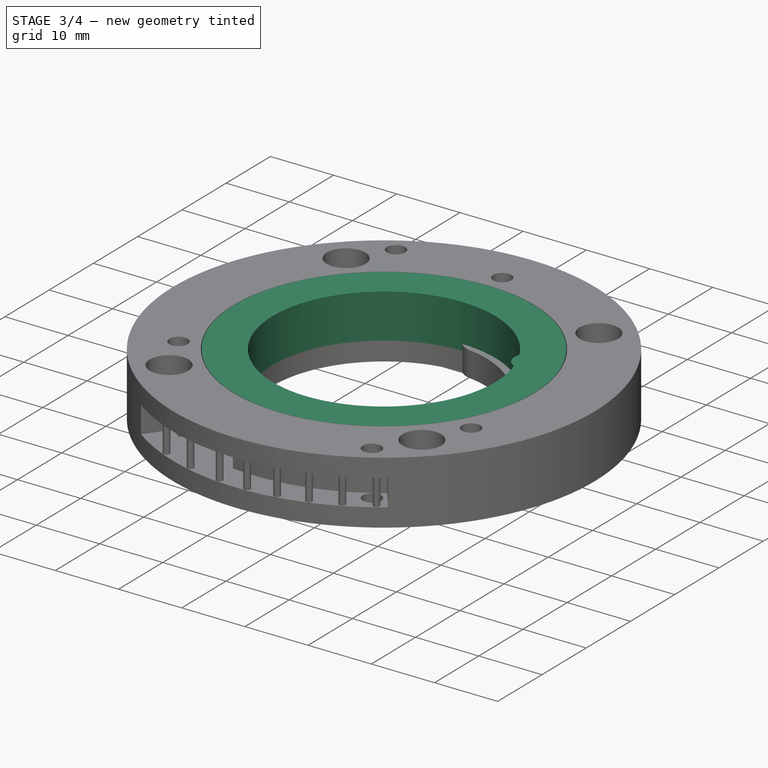
[diagram: stage 3 of 4 — iso view after this stage's code; geometry added in this stage tinted green]
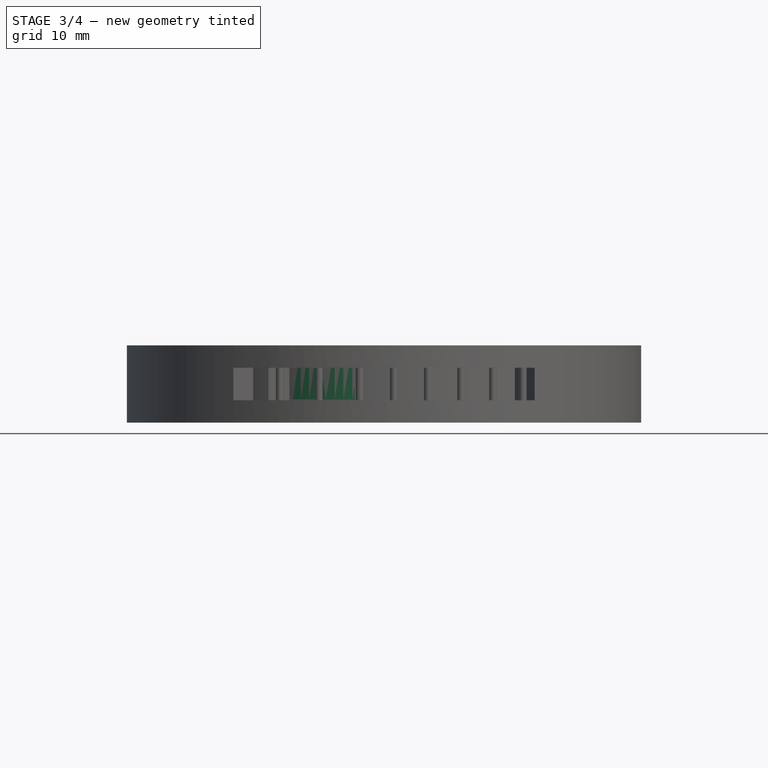
[diagram: stage 3 of 4 — front view after this stage's code; geometry added in this stage tinted green]
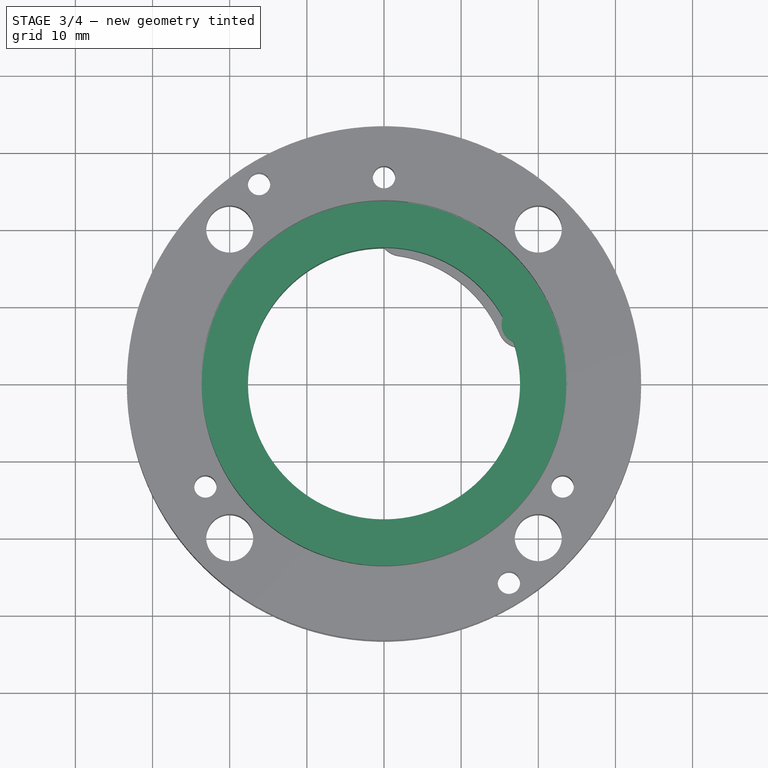
[diagram: stage 3 of 4 — top view after this stage's code; geometry added in this stage tinted green]
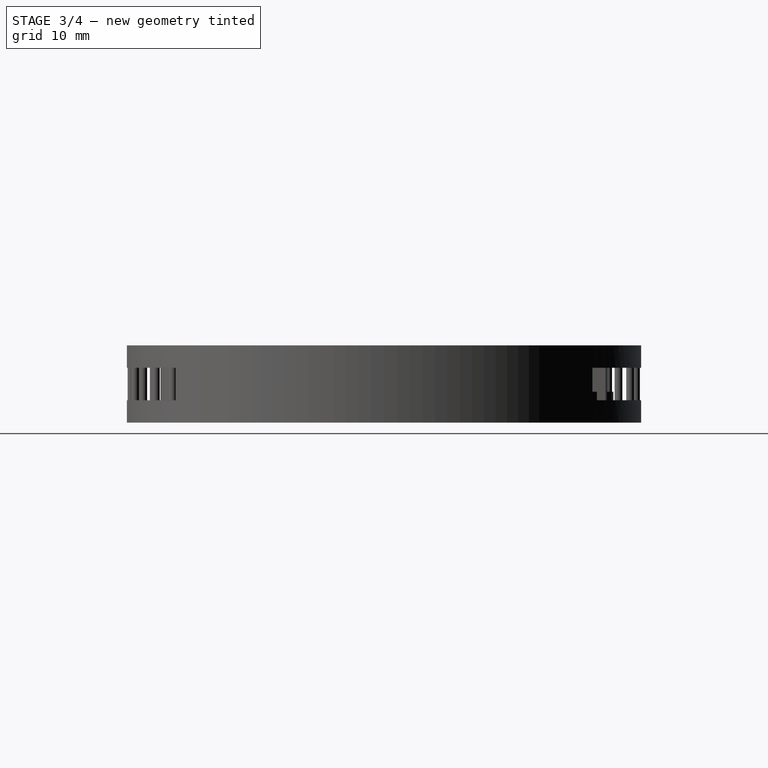
[diagram: stage 3 of 4 — right view after this stage's code; geometry added in this stage tinted green]
FEATURE [Part::Part2DObjectPython] Clone2D003  label="CoreDimensionsSketch (2D)001"  # Draft 2D object (typed FeaturePython)
  Fuse = false
  Objects = -> [Sketch002]
  Scale = (1,1,1)
FEATURE [Sketcher::SketchObject] Sketch004
  ExternalGeometry = -> [Clone2D003]
  FullyConstrained = true
  MapMode = 5
  Placement = pos=(0,0,0) rot=(1,0,0;1.5708rad)
  Support = -> [XZ_Plane002]
  expr: Constraints[10] = Spreadsheet.outerrignlipheight
  expr: Constraints[11] = Spreadsheet.ringheight - Spreadsheet.outerrignlipheight
  sketch-geometry (4):
    g0: LineSegment StartX=-23.6343 StartY=10 StartZ=0 EndX=-17.6343 EndY=10 EndZ=0
    g1: LineSegment StartX=-17.6343 StartY=10 StartZ=0 EndX=-17.6343 EndY=3 EndZ=0
    g2: LineSegment StartX=-17.6343 StartY=3 StartZ=0 EndX=-23.6343 EndY=3 EndZ=0
    g3: LineSegment StartX=-23.6343 StartY=3 StartZ=0 EndX=-23.6343 EndY=10 EndZ=0
  constraints (12):
    c: Coincident(g0,g1)
    c: Coincident(g1,g2)
    c: Coincident(g2,g3)
    c: Coincident(g3,g0)
    c: Horizontal(g0)
    c: Horizontal(g2)
    c: Vertical(g1)
    c: Vertical(g3)
    c: Vertical(g2,g-3)
    c: Vertical(g1,g-4)
    c: DistanceY(g-1,g1) = 3
    c: DistanceY(g1,g1) = 7
FEATURE [PartDesign::Revolution] Revolution001
  Angle = 360
  Axis = (0,-2e-16,1)
  Base = (0,0,0)
  Placement = pos=(0,0,0) rot=(1,0,0;1.5708rad)
  Profile = -> Sketch004
  ReferenceAxis = -> Sketch004 [V_Axis]
  Refine = true
FEATURE [PartDesign::Pad] Pad001
  BaseFeature = -> Pad
  Direction = (0,0,1)
  Length = 6
  Length2 = 10
  Profile = -> Sketch006
  ReferenceAxis = -> Sketch006 [N_Axis]
  Refine = true
  Type = 0
FEATURE [PartDesign::SubtractiveTorus] Torus
  Angle1 = -180
  Angle2 = 180
  Angle3 = 360
  AttacherType = Attacher::AttachEngine3D
  AttachmentOffset = pos=(17.8,7.7,-3) rot=(0,0,1;0rad)
  BaseFeature = -> Pad001
  MapMode = 5
  Placement = pos=(17.8,7.7,7) rot=(0,0,1;0rad)
  Radius1 = 4
  Radius2 = 3
  Refine = true
  Support = -> [Pad001]
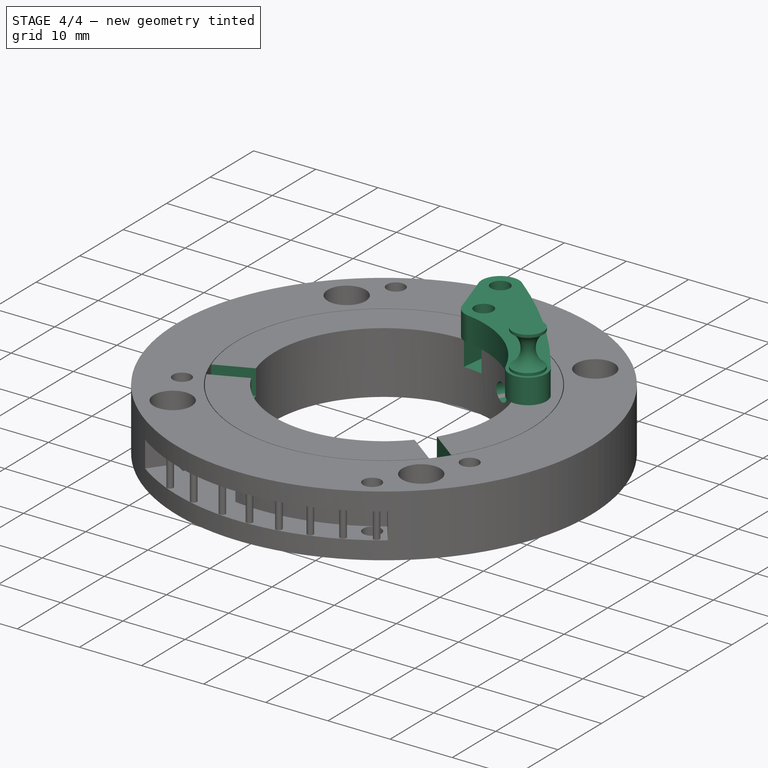
[diagram: stage 4 of 4 — iso view after this stage's code; geometry added in this stage tinted green]
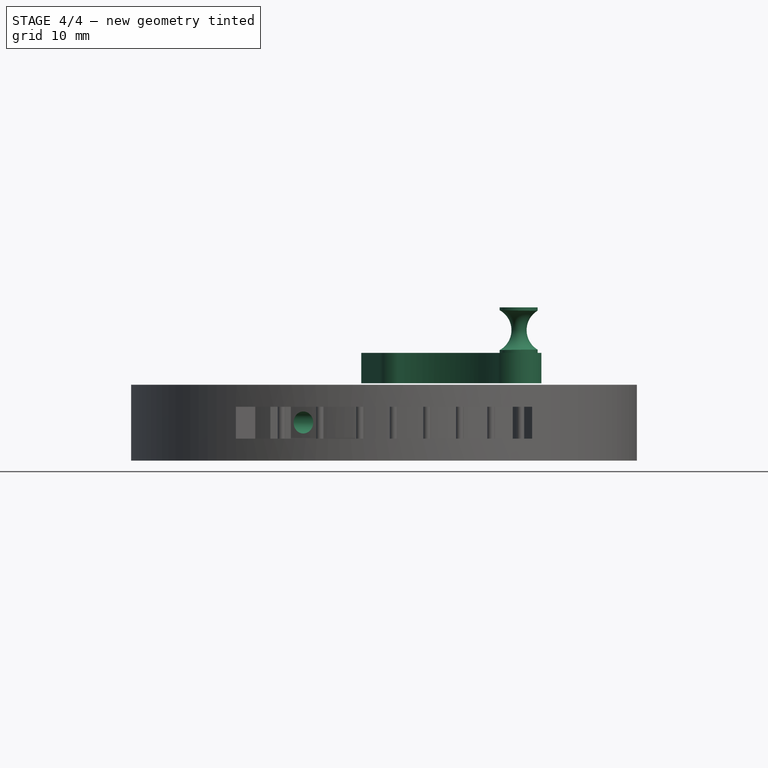
[diagram: stage 4 of 4 — front view after this stage's code; geometry added in this stage tinted green]
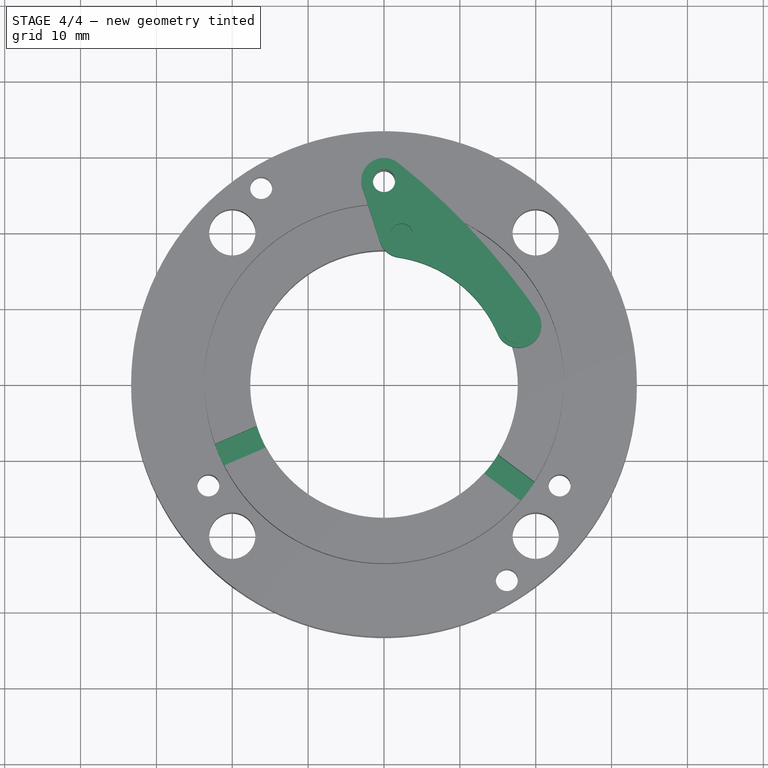
[diagram: stage 4 of 4 — top view after this stage's code; geometry added in this stage tinted green]
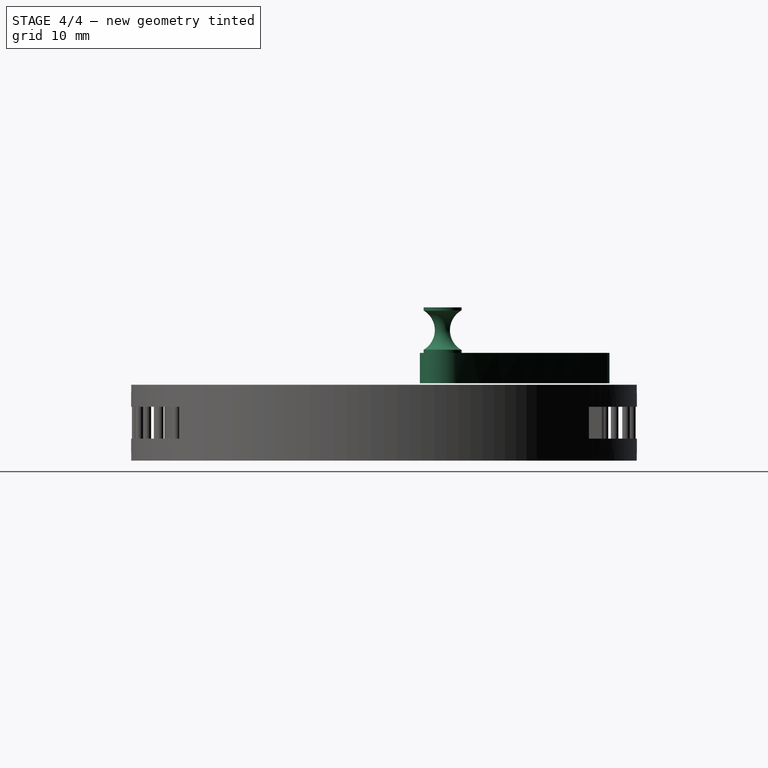
[diagram: stage 4 of 4 — right view after this stage's code; geometry added in this stage tinted green]
FEATURE [PartDesign::Plane] DatumPlane001
  AttachmentOffset = pos=(0,0,4) rot=(0,0,1;0rad)
  Length = 60.4623
  MapMode = 5
  Placement = pos=(0,0,4) rot=(0,0,1;0rad)
  ResizeMode = 0
  Support = -> [XY_Plane]
  Width = 65.1923
  expr: .AttachmentOffset.Base.z = Spreadsheet.armheight
FEATURE [Sketcher::SketchObject] Sketch006
  ExternalGeometry = -> [Clone2D]
  FullyConstrained = true
  MapMode = 5
  Placement = pos=(0,0,4) rot=(0,0,1;0rad)
  Support = -> [DatumPlane001]
  sketch-geometry (1):
    g0: Circle CenterX=17.7448 CenterY=7.73105 CenterZ=0 NormalX=0 NormalY=0 NormalZ=1 AngleXU=0 Radius=2.5
  constraints (2):
    c: Diameter(g0) = 5
    c: Coincident(g0,g-3)
FEATURE [PartDesign::Plane] DatumPlane002
  AttachmentOffset = pos=(0,0,10) rot=(0,0,1;0rad)
  Length = 60
  MapMode = 5
  Placement = pos=(0,0,10) rot=(0,0,1;0rad)
  ResizeMode = 0
  Support = -> [XY_Plane002]
  Width = 60
  expr: .AttachmentOffset.Base.z = Spreadsheet.ringheight
FEATURE [Sketcher::SketchObject] Sketch007
  ExternalGeometry = -> [Clone2D004]
  FullyConstrained = false
  MapMode = 5
  Placement = pos=(0,0,10) rot=(0,0,1;0rad)
  Support = -> [DatumPlane002]
  sketch-geometry (14):
    g0: LineSegment StartX=0.32599 StartY=15.9261 StartZ=0 EndX=1.29216 EndY=24.0812 EndZ=0
    g1: LineSegment StartX=1.29216 StartY=24.0812 StartZ=0 EndX=4.37063 EndY=23.7165 EndZ=0
    g2: LineSegment StartX=4.37063 StartY=23.7165 StartZ=0 EndX=3.40446 EndY=15.5613 EndZ=0
    g3: LineSegment StartX=3.40446 StartY=15.5613 StartZ=0 EndX=0.32599 EndY=15.9261 EndZ=0
    g4: LineSegment StartX=14.6765 StartY=-9.02744 StartZ=0 EndX=26.315 EndY=-17.7204 EndZ=0
    g5: LineSegment StartX=26.315 StartY=-17.7204 StartZ=0 EndX=24.4599 EndY=-20.2041 EndZ=0
    g6: LineSegment StartX=24.4599 StartY=-20.2041 StartZ=0 EndX=12.8214 EndY=-11.5111 EndZ=0
    g7: LineSegment StartX=12.8214 StartY=-11.5111 StartZ=0 EndX=14.6765 EndY=-9.02744 EndZ=0
    g8: LineSegment StartX=-14.3314 StartY=-4.46839 StartZ=0 EndX=-13.108 EndY=-7.31678 EndZ=0
    g9: LineSegment StartX=-13.108 StartY=-7.31678 StartZ=0 EndX=-21.985 EndY=-11.1294 EndZ=0
    g10: LineSegment StartX=-21.985 StartY=-11.1294 StartZ=0 EndX=-23.2084 EndY=-8.28105 EndZ=0
    g11: LineSegment StartX=-23.2084 StartY=-8.28105 StartZ=0 EndX=-14.3314 EndY=-4.46839 EndZ=0
    g12: LineSegment StartX=0 StartY=0 StartZ=0 EndX=43.0758 EndY=-32.174 EndZ=0
    g13: LineSegment StartX=0 StartY=0 StartZ=0 EndX=-73.5351 EndY=-31.5832 EndZ=0
  constraints (28):
    c: Coincident(g0,g1)
    c: Coincident(g1,g2)
    c: Coincident(g2,g3)
    c: Coincident(g0,g3)
    c: Symmetric(g0,g1,g-6)
    c: Symmetric(g0,g2,g-6)
    c: Distance(g3) = 3.1
    c: Equal(g3,g1)
    c: Coincident(g4,g5)
    c: Coincident(g5,g6)
    c: Coincident(g6,g7)
    c: Coincident(g7,g4)
    c: Coincident(g8,g9)
    c: Coincident(g9,g10)
    c: Coincident(g10,g11)
    c: Coincident(g11,g8)
    c: Equal(g3,g7)
    c: Equal(g7,g8)
    c: Equal(g5,g10)
    c: Equal(g10,g3)
    c: Coincident(g-6,g12)
    c: Coincident(g12,g13)
    c: Angle(g12,g-6) = 2.0944
    c: Angle(g13,g12) = 2.0944
    c: Symmetric(g4,g5,g12)
    c: Symmetric(g4,g6,g12)
    c: Symmetric(g8,g8,g13)
    c: Symmetric(g10,g9,g13)
FEATURE [PartDesign::Pocket] Pocket001
  BaseFeature = -> Revolution001
  Direction = (0,0,-1)
  Length = 4
  Length2 = 5
  Placement = pos=(0,0,0) rot=(1,0,0;1.5708rad)
  Profile = -> Sketch007
  ReferenceAxis = -> Sketch007 [N_Axis]
  Refine = true
  Type = 0
FEATURE [PartDesign::Plane] DatumPlane004
  AttachmentOffset = pos=(0,0,-18) rot=(0,0,1;0rad)
  Length = 78.7458
  MapMode = 7
  Placement = pos=(11.0397,21.896,-3e-15) rot=(0.165845,0.697315,0.697315;2.8129rad)
  ResizeMode = 0
  Support = -> [Clone2D004]
  Width = 61.5893
FEATURE [Sketcher::SketchObject] Sketch009
  FullyConstrained = false
  MapMode = 5
  Placement = pos=(11.0397,21.896,-3e-15) rot=(0.165845,0.697315,0.697315;2.8129rad)
  Support = -> [DatumPlane004]
  expr: Constraints[1] = Spreadsheet.m3tightholediameter
  sketch-geometry (1):
    g0: Circle CenterX=0 CenterY=5.02638 CenterZ=0 NormalX=0 NormalY=0 NormalZ=1 AngleXU=0 Radius=1.45
  constraints (2):
    c: PointOnObject(g0,g-2)
    c: Diameter(g0) = 2.9
FEATURE [PartDesign::Pocket] Pocket003
  BaseFeature = -> Pocket001
  Direction = (-0.450201,-0.892927,-2e-16)
  Length = 7
  Length2 = 5
  Placement = pos=(0,0,0) rot=(1,0,0;1.5708rad)
  Profile = -> Sketch009
  ReferenceAxis = -> Sketch009 [N_Axis]
  Refine = true
  Type = 1
FEATURE [PartDesign::Body] Body  label="Arm1Body"
  Group = -> [Sketch001,Clone2D,Pad,DatumPlane001,Sketch006,Pad001,Torus]
  Origin = -> Origin
  Placement = pos=(0,0,10.2) rot=(0,0,1;0rad)
  Tip = -> Torus
FEATURE [PartDesign::FeatureBase] Clone
  BaseFeature = -> Body
  Placement = pos=(0,0,10.2) rot=(0,0,1;0rad)
FEATURE [PartDesign::Body] Body003  label="Arm2PlaceholderBody"
  BaseFeature = -> Body
  Group = -> [Clone]
  Origin = -> Origin003
  Placement = pos=(0,0,0) rot=(0,0,1;4.18879rad)
  Tip = -> Clone
FEATURE [PartDesign::FeatureBase] Clone001
  BaseFeature = -> Body
  Placement = pos=(0,0,10.2) rot=(0,0,1;0rad)
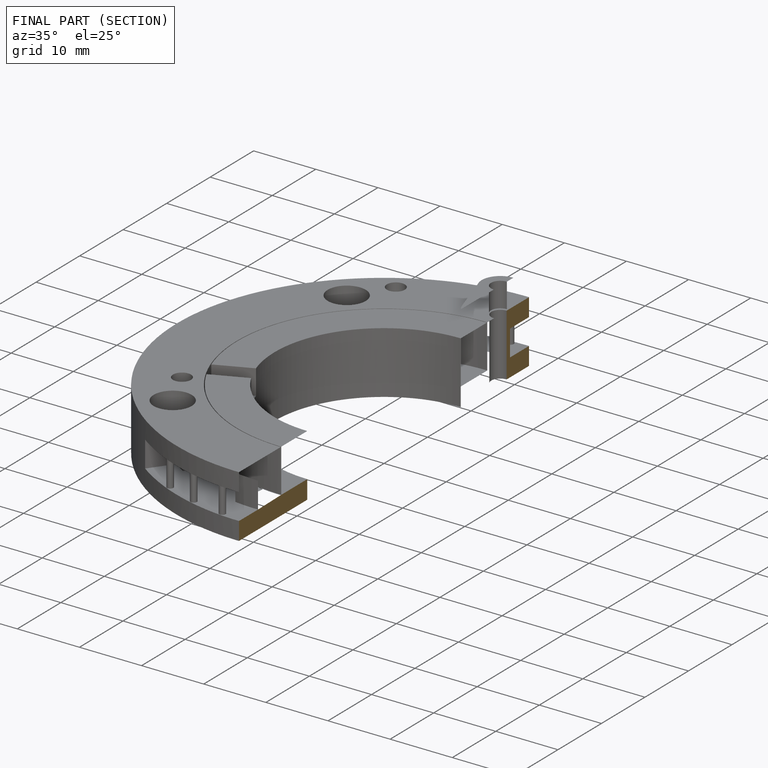
[diagram: finished part — half-section view (interior)]
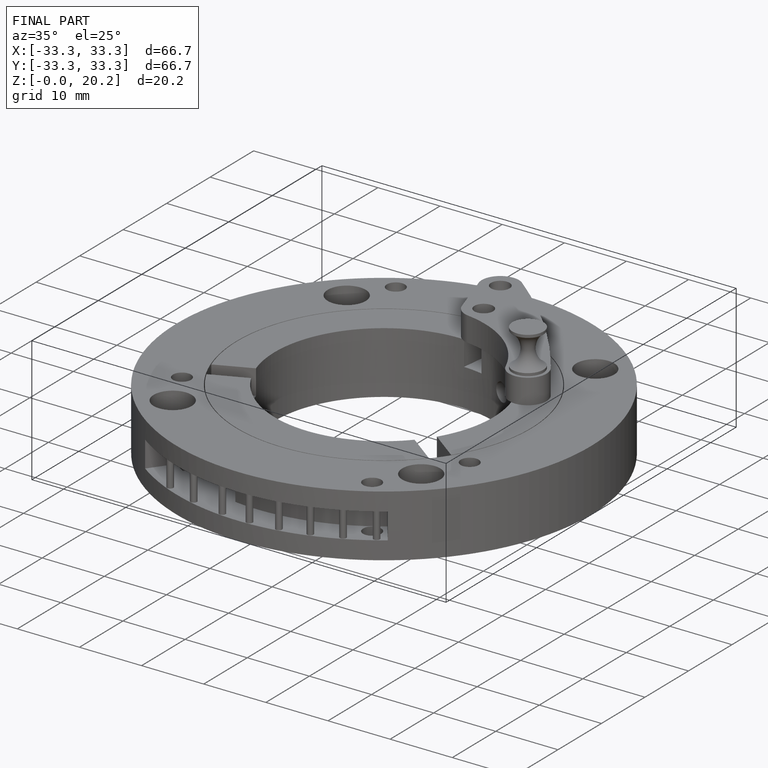
[diagram: finished part — iso view with bounding-box wireframe]
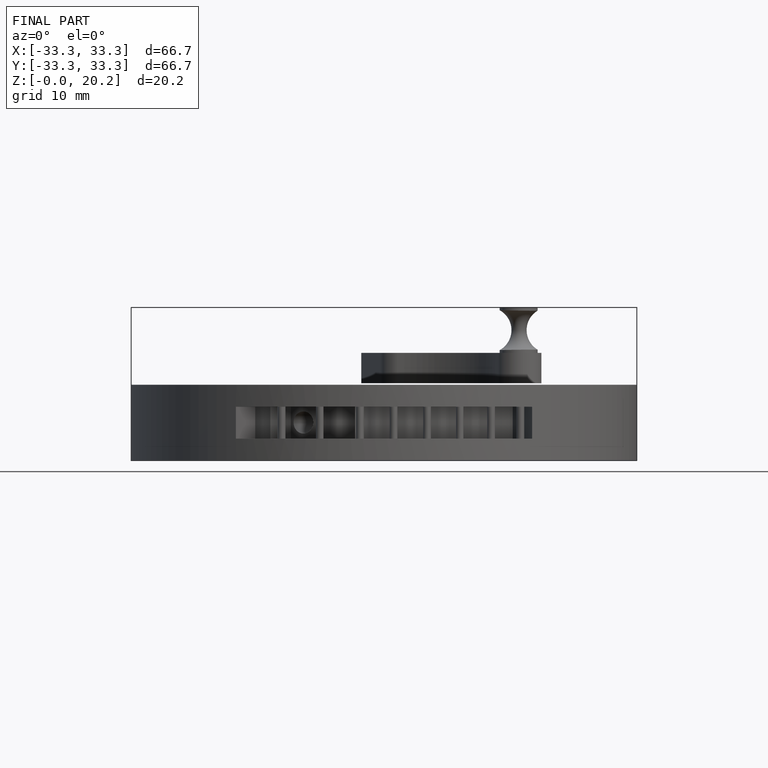
[diagram: finished part — front view with bounding-box wireframe]
